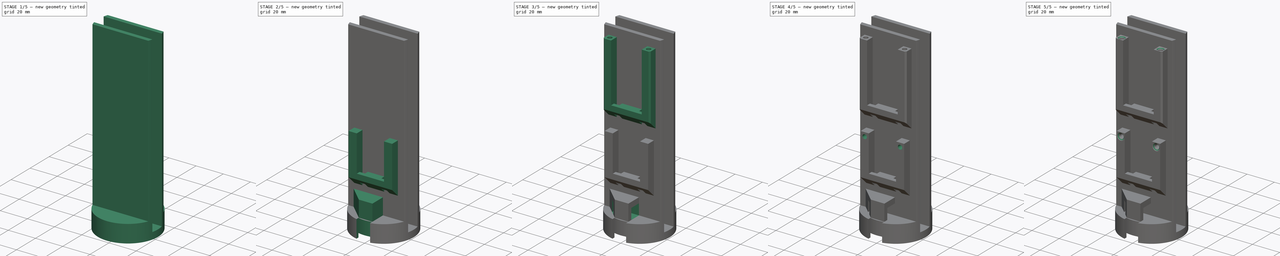
[diagram: build sequence overview — one tinted view per stage of 5, left to right]
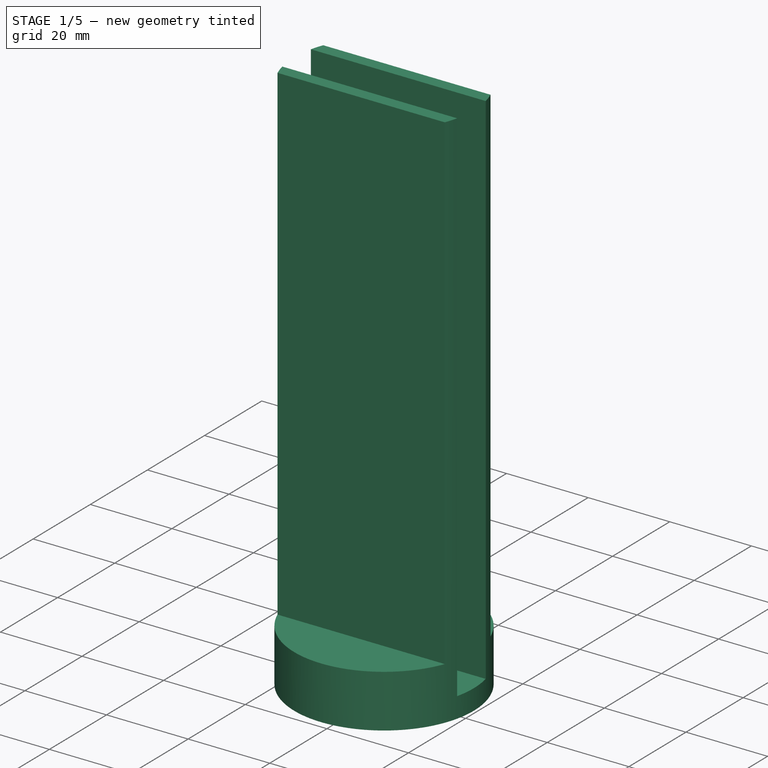
[diagram: stage 1 of 5 — iso view after this stage's code; geometry added in this stage tinted green]
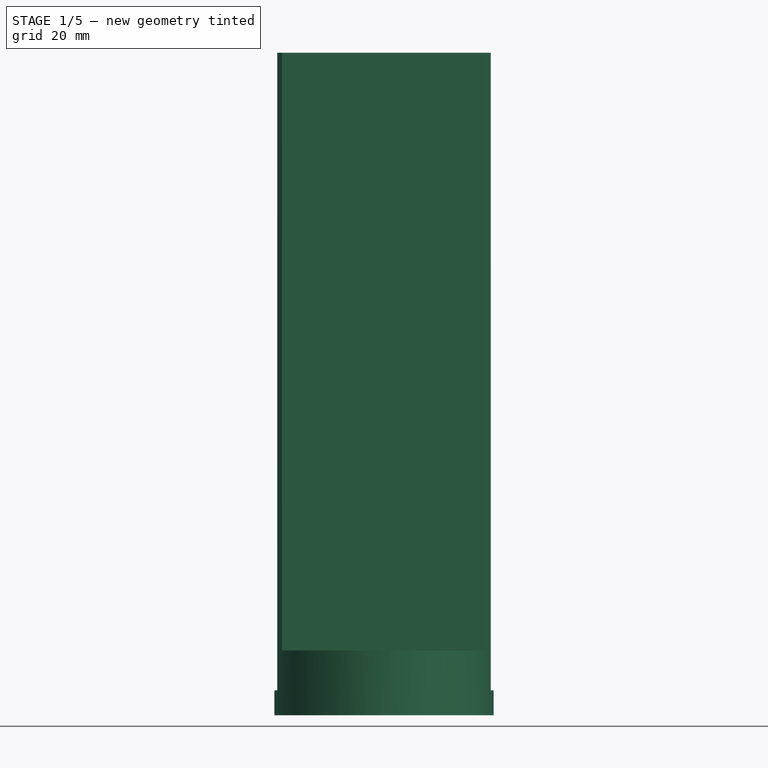
[diagram: stage 1 of 5 — front view after this stage's code; geometry added in this stage tinted green]
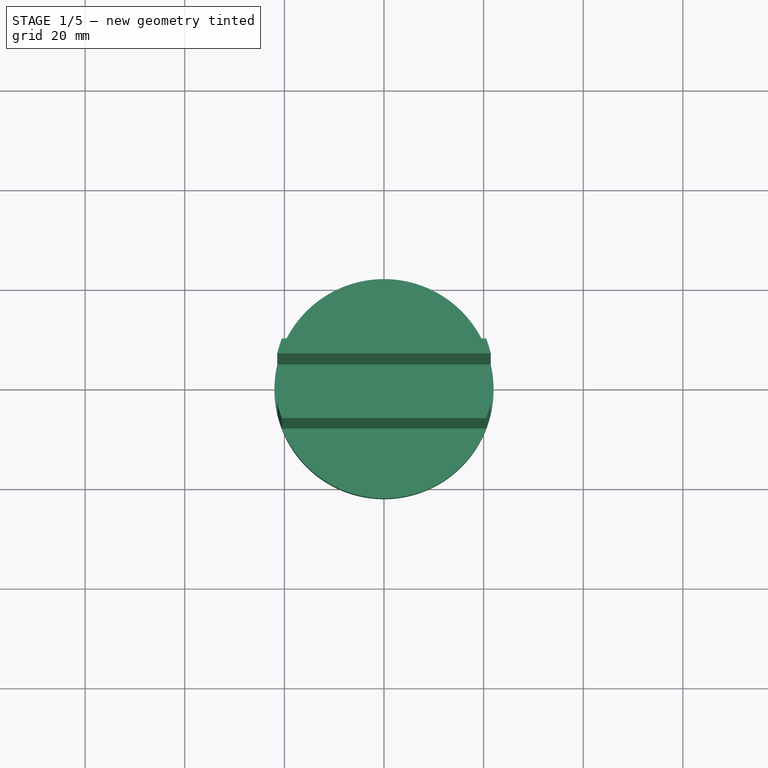
[diagram: stage 1 of 5 — top view after this stage's code; geometry added in this stage tinted green]
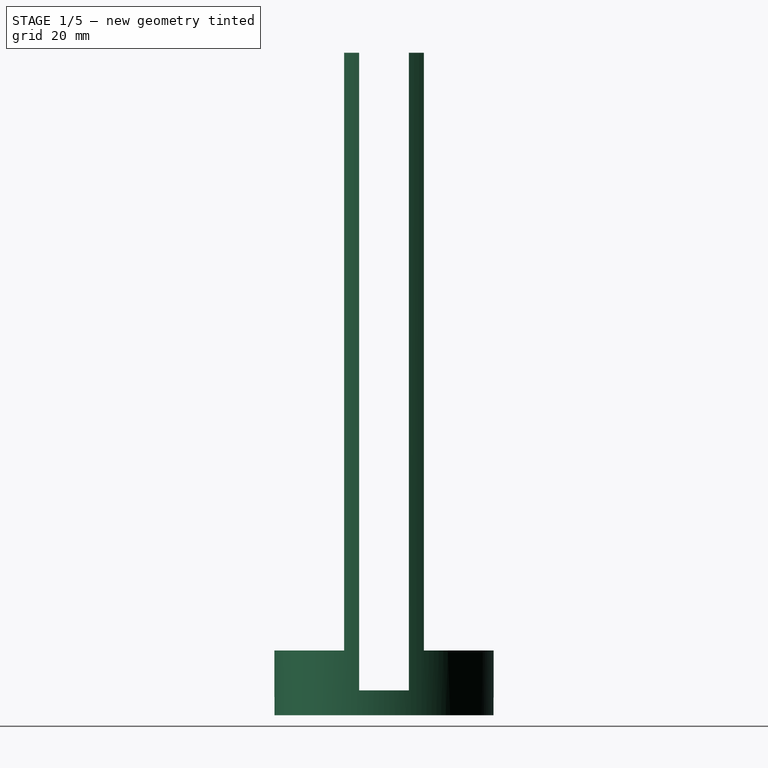
[diagram: stage 1 of 5 — right view after this stage's code; geometry added in this stage tinted green]
FCSTD DOCUMENT  (FreeCAD 0.14R3700 (Git))
Label: BuoyBatteryHolder
License: CC-BY 3.0
LicenseURL: http://creativecommons.org/licenses/by/3.0/
objects: Sketcher::SketchObject×20, PartDesign::Pocket×13, PartDesign::Chamfer×9, PartDesign::Pad×7, PartDesign::Fillet×1
note: 70 computed .brp shape members not serialized (recipe doc carries the construction recipe); baked Part::Feature solids carry a one-line shape summary decoded from their .brp

FEATURE [Sketcher::SketchObject] Sketch
  sketch-geometry (1):
    g0: Circle CenterX=0 CenterY=0 CenterZ=0 NormalX=0 NormalY=0 NormalZ=1 Radius=22
  constraints (2):
    c: Coincident(g0,g-1)
    c: Radius(g0) = 22
FEATURE [PartDesign::Pad] Pad
  Length = 133
  Length2 = 100
  Sketch = -> Sketch
  Type = 0
FEATURE [Sketcher::SketchObject] Sketch001
  ExternalGeometry = -> [Pad]
  Placement = pos=(0,0,133) rot=(0,0,1;0rad)
  Support = -> Pad [Face3]
  sketch-geometry (4):
    g0: LineSegment StartX=-21.4243 StartY=5 StartZ=0 EndX=21.4243 EndY=5 EndZ=0
    g1: LineSegment StartX=21.4243 StartY=-5 StartZ=0 EndX=-21.4243 EndY=-5 EndZ=0
    g2: ArcOfCircle CenterX=0 CenterY=0 CenterZ=0 NormalX=0 NormalY=0 NormalZ=1 Radius=22 StartAngle=2.91232 EndAngle=3.37087
    g3: ArcOfCircle CenterX=0 CenterY=0 CenterZ=0 NormalX=0 NormalY=0 NormalZ=1 Radius=22 StartAngle=6.05391 EndAngle=6.51246
  constraints (12):
    c: Horizontal(g0)
    c: Horizontal(g1)
    c: Coincident(g2,g-1)
    c: Equal(g2,g-3)
    c: Coincident(g2,g0)
    c: Coincident(g3,g0)
    c: Equal(g2,g3)
    c: Coincident(g2,g1)
    c: Coincident(g3,g1)
    c: Coincident(g2,g3)
    c: Symmetric(g0,g1,g-1)
    c: DistanceY(g0,g1) = -10
FEATURE [PartDesign::Pocket] Pocket
  Length = 128
  Sketch = -> Sketch001
  Type = 0
FEATURE [Sketcher::SketchObject] Sketch002
  ExternalGeometry = -> [Pocket]
  Placement = pos=(0,0,133) rot=(0,0,1;0rad)
  Support = -> Pocket [Face7]
  sketch-geometry (4):
    g0: ArcOfCircle CenterX=0 CenterY=0 CenterZ=0 NormalX=0 NormalY=0 NormalZ=1 Radius=22 StartAngle=3.51376 EndAngle=5.91102
    g1: LineSegment StartX=-20.4939 StartY=8 StartZ=0 EndX=20.4939 EndY=8 EndZ=0
    g2: LineSegment StartX=-20.4939 StartY=-8 StartZ=0 EndX=20.4939 EndY=-8 EndZ=0
    g3: ArcOfCircle CenterX=0 CenterY=0 CenterZ=0 NormalX=0 NormalY=0 NormalZ=1 Radius=22 StartAngle=0.372169 EndAngle=2.76942
  constraints (12):
    c: Coincident(g0,g-1)
    c: Horizontal(g1)
    c: Horizontal(g2)
    c: Coincident(g0,g2)
    c: Coincident(g3,g1)
    c: Equal(g0,g3)
    c: Coincident(g0,g2)
    c: Coincident(g3,g1)
    c: Coincident(g0,g3)
    c: Symmetric(g1,g0,g-1)
    c: Equal(g3,g-3)
    c: DistanceY(g1,g-4) = -3
FEATURE [PartDesign::Pocket] Pocket001
  Length = 120
  Sketch = -> Sketch002
  Type = 0
FEATURE [Sketcher::SketchObject] Sketch003
  Placement = pos=(0,0,0) rot=(1,0,0;3.14159rad)
  Support = -> Pocket001 [Face1]
  sketch-geometry (2):
    g0: Circle CenterX=0 CenterY=0 CenterZ=0 NormalX=0 NormalY=0 NormalZ=1 Radius=14.5
    g1: Circle CenterX=0 CenterY=0 CenterZ=0 NormalX=0 NormalY=0 NormalZ=1 Radius=20
  constraints (4):
    c: Coincident(g0,g-1)
    c: Coincident(g1,g-1)
    c: Radius(g0) = 14.5
    c: Radius(g1) = 20
FEATURE [PartDesign::Pocket] Pocket002
  Length = 3
  Sketch = -> Sketch003
  Type = 0
FEATURE [Sketcher::SketchObject] Sketch008
  ExternalGeometry = -> [Pocket002]
  Placement = pos=(0,0,0) rot=(1,0,0;3.14159rad)
  Support = -> Pocket002 [Face15]
  sketch-geometry (4):
    g0: LineSegment StartX=-5 StartY=-8 StartZ=0 EndX=5 EndY=-8 EndZ=0
    g1: LineSegment StartX=5 StartY=-8 StartZ=0 EndX=5 EndY=-20 EndZ=0
    g2: LineSegment StartX=5 StartY=-20 StartZ=0 EndX=-5 EndY=-20 EndZ=0
    g3: LineSegment StartX=-5 StartY=-20 StartZ=0 EndX=-5 EndY=-8 EndZ=0
  constraints (12):
    c: Coincident(g0,g1)
    c: Coincident(g1,g2)
    c: Coincident(g2,g3)
    c: Coincident(g3,g0)
    c: Horizontal(g0)
    c: Horizontal(g2)
    c: Vertical(g1)
    c: Vertical(g3)
    c: Tangent(g2,g-3)
    c: Distance(g1) = 12
    c: Distance(g0) = 10
    c: Symmetric(g2,g1,g-2)
FEATURE [PartDesign::Pocket] Pocket003
  Length = 8
  Sketch = -> Sketch008
  Type = 0
FEATURE [PartDesign::Chamfer] Chamfer
  Base = -> Pocket003 [Edge43]
  Size = 5
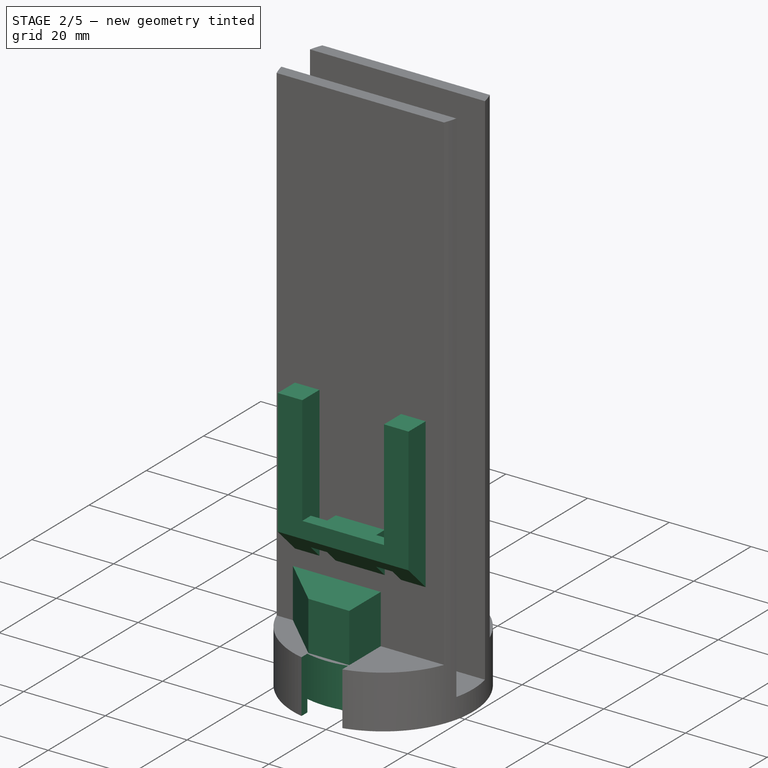
[diagram: stage 2 of 5 — iso view after this stage's code; geometry added in this stage tinted green]
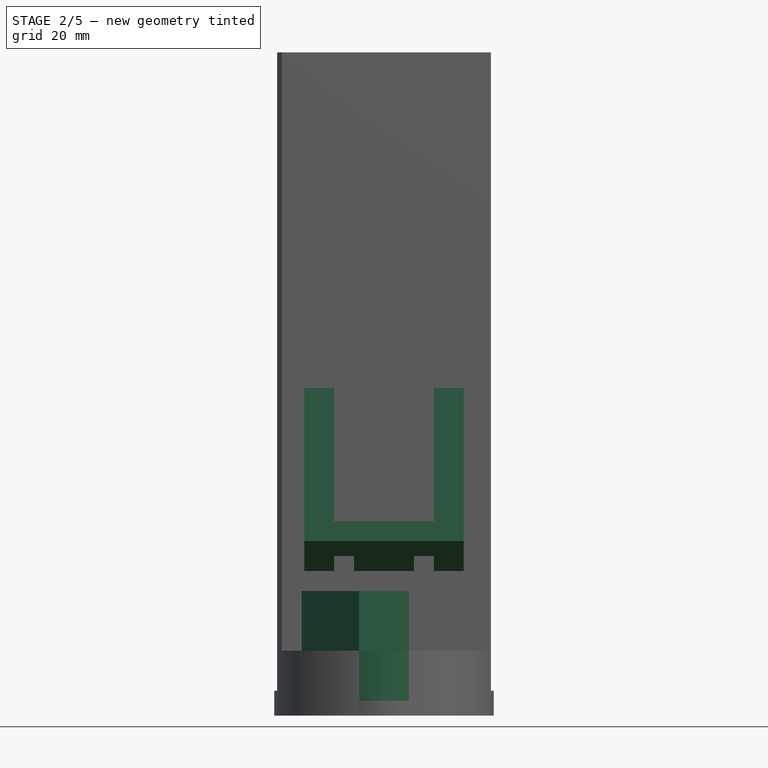
[diagram: stage 2 of 5 — front view after this stage's code; geometry added in this stage tinted green]
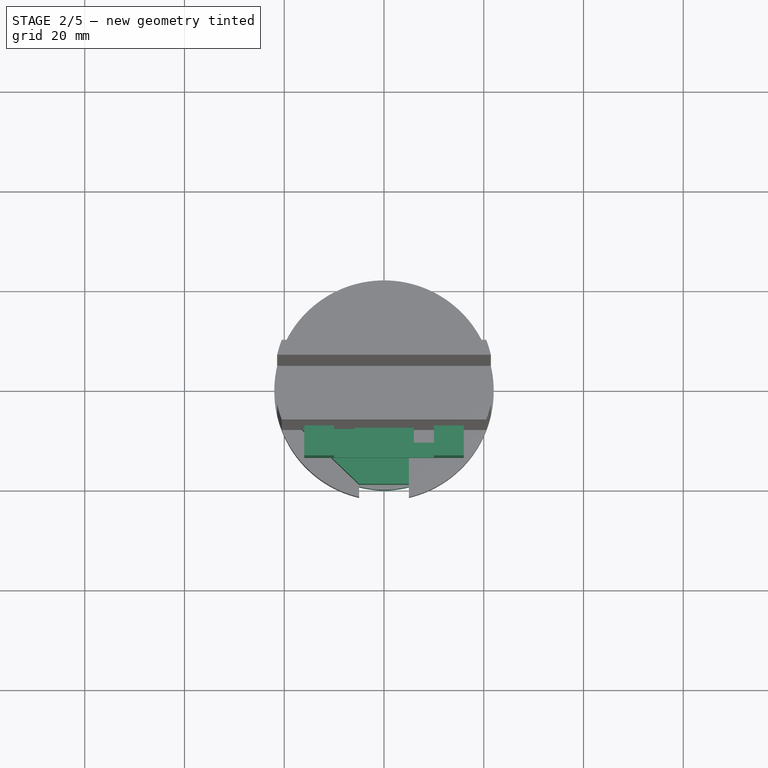
[diagram: stage 2 of 5 — top view after this stage's code; geometry added in this stage tinted green]
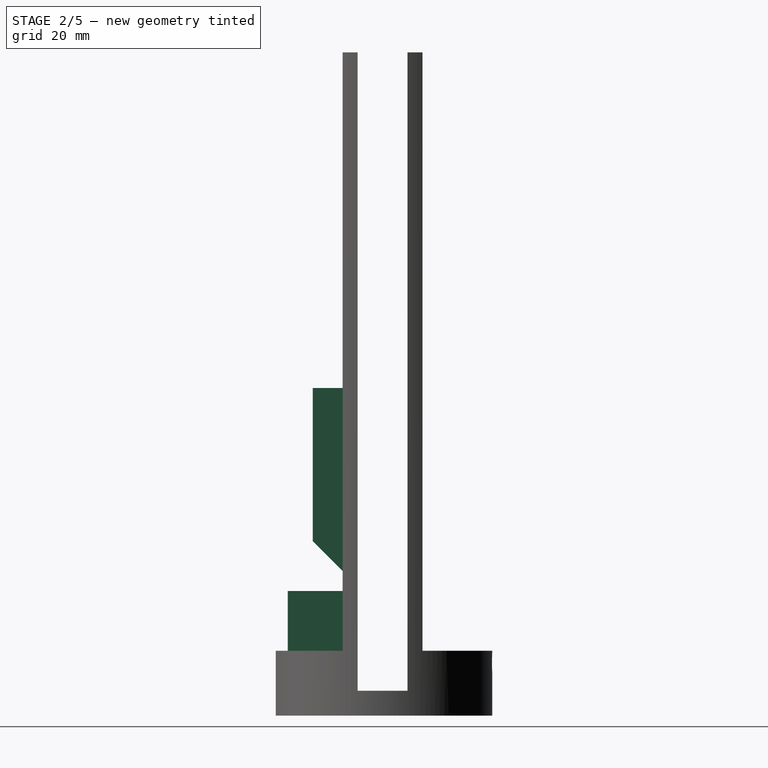
[diagram: stage 2 of 5 — right view after this stage's code; geometry added in this stage tinted green]
FEATURE [Sketcher::SketchObject] Sketch009
  ExternalGeometry = -> [Chamfer]
  Placement = pos=(0,11.5,11.5) rot=(1,0,0;2.35619rad)
  Support = -> Chamfer [Face3]
  sketch-geometry (1):
    g0: Circle CenterX=0 CenterY=-8.02082 CenterZ=0 NormalX=0 NormalY=0 NormalZ=1 Radius=1.6
  constraints (3):
    c: PointOnObject(g0,g-2)
    c: Radius(g0) = 1.6
    c: DistanceY(g0,g-3) = -4
FEATURE [PartDesign::Pocket] Pocket004
  Length = 5
  Sketch = -> Sketch009
  Type = 1
FEATURE [Sketcher::SketchObject] Sketch010
  ExternalGeometry = -> [Pocket004]
  Placement = pos=(0,0,0) rot=(1,0,0;3.14159rad)
  Support = -> Pocket004 [Face7]
  sketch-geometry (4):
    g0: ArcOfCircle CenterX=0 CenterY=0 CenterZ=0 NormalX=0 NormalY=0 NormalZ=1 Radius=22 StartAngle=1.34152 EndAngle=1.80007
    g1: ArcOfCircle CenterX=0 CenterY=0 CenterZ=0 NormalX=0 NormalY=0 NormalZ=1 Radius=20 StartAngle=1.31812 EndAngle=1.82348
    g2: LineSegment StartX=-5 StartY=21.4243 StartZ=0 EndX=-5 EndY=19.3649 EndZ=0
    g3: LineSegment StartX=5 StartY=21.4243 StartZ=0 EndX=5 EndY=19.3649 EndZ=0
  constraints (12):
    c: Coincident(g0,g-1)
    c: Coincident(g1,g-1)
    c: Coincident(g2,g0)
    c: Coincident(g2,g1)
    c: Vertical(g2)
    c: Coincident(g3,g0)
    c: Coincident(g3,g1)
    c: Vertical(g3)
    c: DistanceX(g0,g0) = 10
    c: Equal(g1,g-3)
    c: Equal(g0,g-4)
    c: Symmetric(g1,g1,g-2)
FEATURE [PartDesign::Pocket] Pocket005
  Length = 5
  Sketch = -> Sketch010
  Type = 1
FEATURE [Sketcher::SketchObject] Sketch011
  Placement = pos=(0,-8,0) rot=(1,0,0;1.5708rad)
  Support = -> Pocket005 [Face25]
  sketch-geometry (8):
    g0: LineSegment StartX=-16 StartY=65.7 StartZ=0 EndX=-10 EndY=65.7 EndZ=0
    g1: LineSegment StartX=-10 StartY=65.7 StartZ=0 EndX=-10 EndY=39 EndZ=0
    g2: LineSegment StartX=-10 StartY=39 StartZ=0 EndX=10 EndY=39 EndZ=0
    g3: LineSegment StartX=10 StartY=39 StartZ=0 EndX=10 EndY=65.7 EndZ=0
    g4: LineSegment StartX=10 StartY=65.7 StartZ=0 EndX=16 EndY=65.7 EndZ=0
    g5: LineSegment StartX=16 StartY=65.7 StartZ=0 EndX=16 EndY=35 EndZ=0
    g6: LineSegment StartX=-16 StartY=65.7 StartZ=0 EndX=-16 EndY=35 EndZ=0
    g7: LineSegment StartX=-16 StartY=35 StartZ=0 EndX=16 EndY=35 EndZ=0
  constraints (23):
    c: Horizontal(g0)
    c: Coincident(g1,g0)
    c: Vertical(g1)
    c: Coincident(g2,g1)
    c: Horizontal(g2)
    c: Coincident(g3,g2)
    c: Vertical(g3)
    c: Coincident(g4,g3)
    c: Horizontal(g4)
    c: Coincident(g5,g4)
    c: Vertical(g5)
    c: Coincident(g6,g0)
    c: Coincident(g7,g6)
    c: Coincident(g7,g5)
    c: Vertical(g6)
    c: Horizontal(g7)
    c: Symmetric(g0,g3,g-2)
    c: DistanceX(g0,g0) = 6
    c: Symmetric(g0,g4,g-2)
    c: DistanceY(g1,g6) = -4
    c: DistanceX(g0,g3) = 20
    c: DistanceY(g0,g1) = -26.7
    c: DistanceY(g5) = 35
FEATURE [PartDesign::Pad] Pad001  label="ChargerMount"
  Length = 6
  Length2 = 100
  Sketch = -> Sketch011
  Type = 0
FEATURE [PartDesign::Chamfer] Chamfer001
  Base = -> Pad001 [Edge80]
  Size = 5.999
FEATURE [Sketcher::SketchObject] Sketch012
  ExternalGeometry = -> [Chamfer001]
  Placement = pos=(0,0,39) rot=(0,0,1;0rad)
  Support = -> Chamfer001 [Face7]
  sketch-geometry (8):
    g0: LineSegment StartX=-10 StartY=-8 StartZ=0 EndX=-6 EndY=-8 EndZ=0
    g1: LineSegment StartX=-6 StartY=-8 StartZ=0 EndX=-6 EndY=-11 EndZ=0
    g2: LineSegment StartX=-6 StartY=-11 StartZ=0 EndX=-10 EndY=-11 EndZ=0
    g3: LineSegment StartX=-10 StartY=-11 StartZ=0 EndX=-10 EndY=-8 EndZ=0
    g4: LineSegment StartX=6 StartY=-8 StartZ=0 EndX=10 EndY=-8 EndZ=0
    g5: LineSegment StartX=10 StartY=-8 StartZ=0 EndX=10 EndY=-11 EndZ=0
    g6: LineSegment StartX=10 StartY=-11 StartZ=0 EndX=6 EndY=-11 EndZ=0
    g7: LineSegment StartX=6 StartY=-11 StartZ=0 EndX=6 EndY=-8 EndZ=0
  constraints (23):
    c: Coincident(g0,g1)
    c: Coincident(g1,g2)
    c: Coincident(g2,g3)
    c: Coincident(g3,g0)
    c: Horizontal(g0)
    c: Horizontal(g2)
    c: Vertical(g1)
    c: Vertical(g3)
    c: PointOnObject(g0,g-3)
    c: Coincident(g4,g5)
    c: Coincident(g5,g6)
    c: Coincident(g6,g7)
    c: Coincident(g7,g4)
    c: Horizontal(g4)
    c: Horizontal(g6)
    c: Vertical(g5)
    c: Vertical(g7)
    c: PointOnObject(g4,g-3)
    c: DistanceX(g4,g-4) = 0
    c: DistanceX(g0,g-4) = 0
    c: DistanceY(g6,g4) = 3
    c: Symmetric(g1,g6,g-2)
    c: Distance(g0,g0) = 4
FEATURE [PartDesign::Pocket] Pocket006
  Length = 10
  Sketch = -> Sketch012
  Type = 0
FEATURE [Sketcher::SketchObject] Sketch013
  Placement = pos=(0,0,13) rot=(0,0,1;0rad)
  Support = -> Pocket006 [Face24]
  sketch-geometry (5):
    g0: LineSegment StartX=-5 StartY=-8 StartZ=0 EndX=5 EndY=-8 EndZ=0
    g1: LineSegment StartX=5 StartY=-8 StartZ=0 EndX=5 EndY=-19 EndZ=0
    g2: LineSegment StartX=5 StartY=-19 StartZ=0 EndX=-5 EndY=-19 EndZ=0
    g3: LineSegment StartX=-5 StartY=-19 StartZ=0 EndX=-16.4939 EndY=-8 EndZ=0
    g4: LineSegment StartX=-16.4939 StartY=-8 StartZ=0 EndX=-5 EndY=-8 EndZ=0
  constraints (11):
    c: Coincident(g0,g1)
    c: Coincident(g1,g2)
    c: Horizontal(g0)
    c: Horizontal(g2)
    c: Vertical(g1)
    c: DistanceY(g0,g1) = -11
    c: Symmetric(g0,g0,g-2)
    c: DistanceX(g0,g0) = -10
    c: Coincident(g3,g2)
    c: Coincident(g4,g3)
    c: Coincident(g4,g0)
FEATURE [PartDesign::Pad] Pad002
  Length = 12
  Length2 = 100
  Sketch = -> Sketch013
  Type = 0
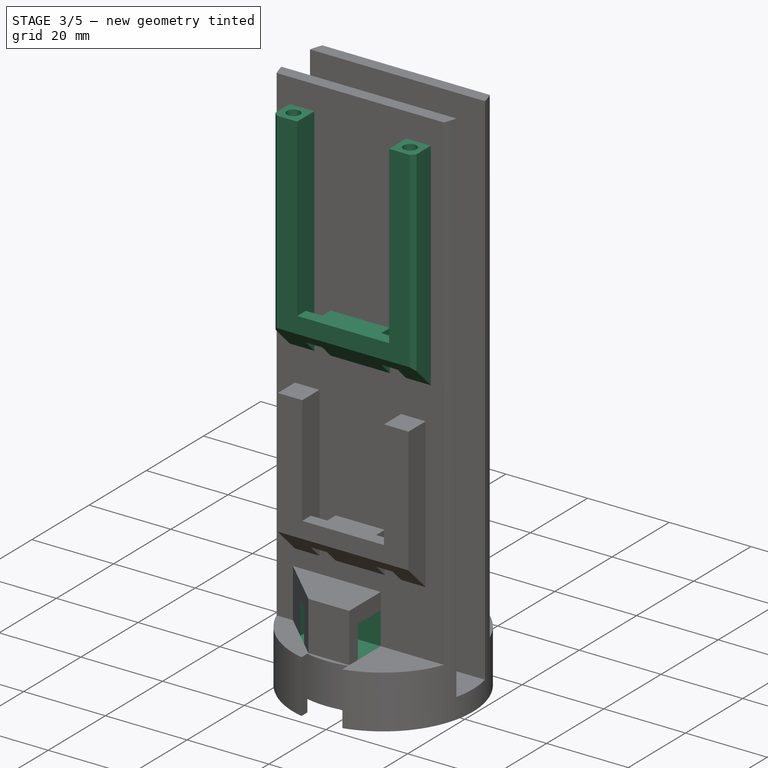
[diagram: stage 3 of 5 — iso view after this stage's code; geometry added in this stage tinted green]
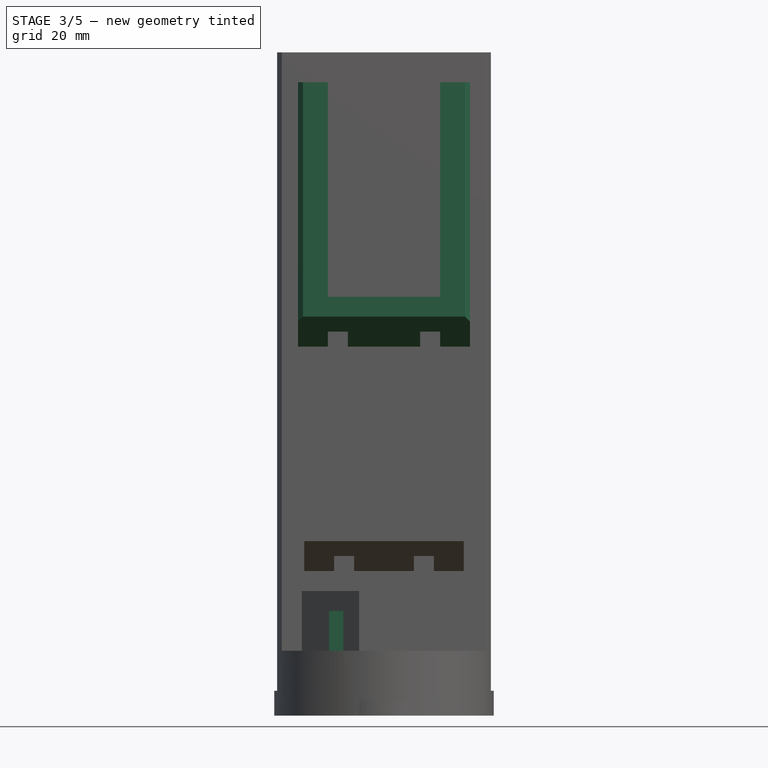
[diagram: stage 3 of 5 — front view after this stage's code; geometry added in this stage tinted green]
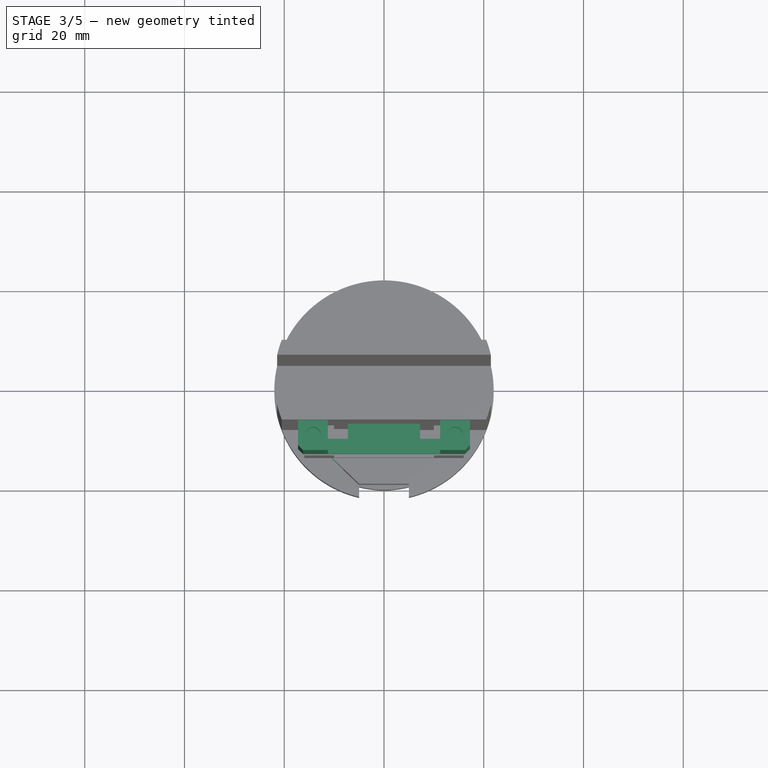
[diagram: stage 3 of 5 — top view after this stage's code; geometry added in this stage tinted green]
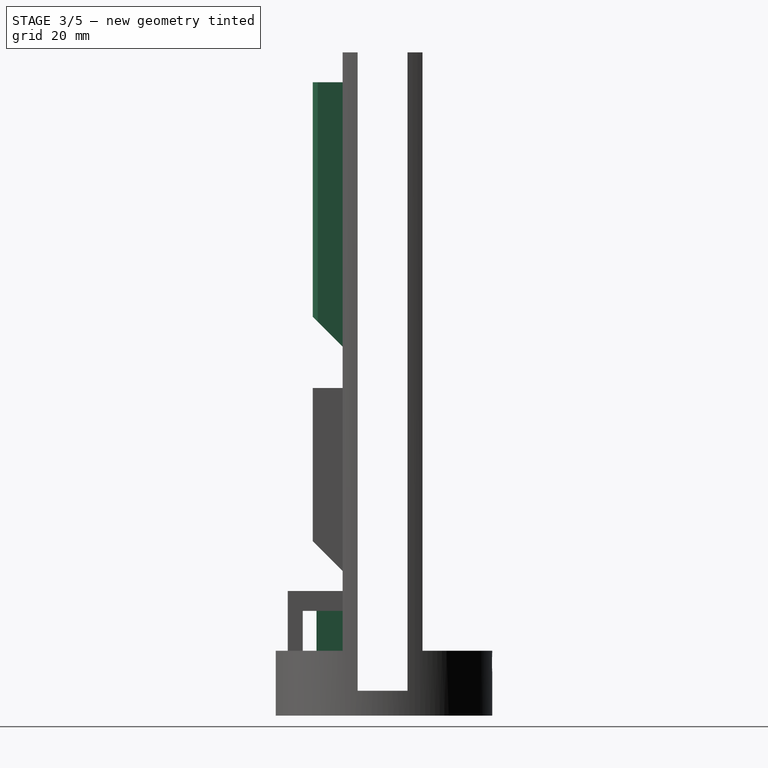
[diagram: stage 3 of 5 — right view after this stage's code; geometry added in this stage tinted green]
FEATURE [Sketcher::SketchObject] Sketch014
  ExternalGeometry = -> [Pad002]
  Placement = pos=(5,0,0) rot=(0.57735,0.57735,0.57735;2.0944rad)
  Support = -> Pad002 [Face25]
  sketch-geometry (4):
    g0: LineSegment StartX=-8 StartY=13 StartZ=0 EndX=-16 EndY=13 EndZ=0
    g1: LineSegment StartX=-16 StartY=13 StartZ=0 EndX=-16 EndY=21 EndZ=0
    g2: LineSegment StartX=-16 StartY=21 StartZ=0 EndX=-8 EndY=21 EndZ=0
    g3: LineSegment StartX=-8 StartY=21 StartZ=0 EndX=-8 EndY=13 EndZ=0
  constraints (11):
    c: Coincident(g0,g1)
    c: Coincident(g1,g2)
    c: Coincident(g2,g3)
    c: Coincident(g3,g0)
    c: Horizontal(g0)
    c: Horizontal(g2)
    c: Vertical(g1)
    c: Vertical(g3)
    c: Coincident(g0,g-3)
    c: DistanceX(g2,g1) = -8
    c: DistanceY(g2,g0) = -8
FEATURE [PartDesign::Pocket] Pocket007
  Length = 16
  Sketch = -> Sketch014
  Type = 0
FEATURE [Sketcher::SketchObject] Sketch015
  ExternalGeometry = -> [Pocket007]
  Placement = pos=(0,-8,0) rot=(1,0,0;1.5708rad)
  Support = -> Pocket007 [Face5]
  sketch-geometry (8):
    g0: LineSegment StartX=17.25 StartY=127 StartZ=0 EndX=17.25 EndY=80 EndZ=0
    g1: LineSegment StartX=17.25 StartY=80 StartZ=0 EndX=-17.25 EndY=80 EndZ=0
    g2: LineSegment StartX=-17.25 StartY=80 StartZ=0 EndX=-17.25 EndY=127 EndZ=0
    g3: LineSegment StartX=11.25 StartY=127 StartZ=0 EndX=11.25 EndY=84 EndZ=0
    g4: LineSegment StartX=11.25 StartY=84 StartZ=0 EndX=-11.25 EndY=84 EndZ=0
    g5: LineSegment StartX=-11.25 StartY=84 StartZ=0 EndX=-11.25 EndY=127 EndZ=0
    g6: LineSegment StartX=-17.25 StartY=127 StartZ=0 EndX=-11.25 EndY=127 EndZ=0
    g7: LineSegment StartX=11.25 StartY=127 StartZ=0 EndX=17.25 EndY=127 EndZ=0
  constraints (23):
    c: Coincident(g0,g1)
    c: Coincident(g1,g2)
    c: Horizontal(g1)
    c: Vertical(g0)
    c: Vertical(g2)
    c: Coincident(g3,g4)
    c: Coincident(g4,g5)
    c: Horizontal(g4)
    c: Vertical(g3)
    c: Vertical(g5)
    c: Coincident(g6,g2)
    c: Coincident(g6,g5)
    c: Horizontal(g6)
    c: Coincident(g7,g3)
    c: Coincident(g7,g0)
    c: Horizontal(g7)
    c: Symmetric(g5,g3,g-2)
    c: Symmetric(g2,g0,g-2)
    c: DistanceX(g5,g2) = -6
    c: DistanceY(g2,g4) = -43
    c: DistanceY(g1,g4) = 4
    c: DistanceX(g3,g4) = -22.5
    c: DistanceY(g2,g-3) = 6
FEATURE [PartDesign::Pad] Pad003
  Length = 6
  Length2 = 100
  Sketch = -> Sketch015
  Type = 0
FEATURE [PartDesign::Chamfer] Chamfer002
  Base = -> Pad003 [Edge56]
  Size = 5.999
FEATURE [PartDesign::Chamfer] Chamfer003
  Base = -> Chamfer002 [Edge50,Edge43]
  Size = 1
FEATURE [Sketcher::SketchObject] Sketch016
  ExternalGeometry = -> [Chamfer003]
  Placement = pos=(0,0,84) rot=(0,0,1;0rad)
  Support = -> Chamfer003 [Face11]
  sketch-geometry (8):
    g0: LineSegment StartX=-11.25 StartY=-8 StartZ=0 EndX=-7.25 EndY=-8 EndZ=0
    g1: LineSegment StartX=-7.25 StartY=-8 StartZ=0 EndX=-7.25 EndY=-11 EndZ=0
    g2: LineSegment StartX=-7.25 StartY=-11 StartZ=0 EndX=-11.25 EndY=-11 EndZ=0
    g3: LineSegment StartX=-11.25 StartY=-11 StartZ=0 EndX=-11.25 EndY=-8 EndZ=0
    g4: LineSegment StartX=11.25 StartY=-8 StartZ=0 EndX=7.25 EndY=-8 EndZ=0
    g5: LineSegment StartX=7.25 StartY=-8 StartZ=0 EndX=7.25 EndY=-11 EndZ=0
    g6: LineSegment StartX=7.25 StartY=-11 StartZ=0 EndX=11.25 EndY=-11 EndZ=0
    g7: LineSegment StartX=11.25 StartY=-11 StartZ=0 EndX=11.25 EndY=-8 EndZ=0
  constraints (22):
    c: Coincident(g0,g1)
    c: Coincident(g1,g2)
    c: Coincident(g2,g3)
    c: Coincident(g3,g0)
    c: Horizontal(g0)
    c: Horizontal(g2)
    c: Vertical(g1)
    c: Vertical(g3)
    c: Coincident(g0,g-3)
    c: Coincident(g4,g5)
    c: Coincident(g5,g6)
    c: Coincident(g6,g7)
    c: Coincident(g7,g4)
    c: Horizontal(g4)
    c: Horizontal(g6)
    c: Vertical(g5)
    c: Vertical(g7)
    c: PointOnObject(g4,g-4)
    c: Symmetric(g4,g0,g-2)
    c: Symmetric(g5,g1,g-2)
    c: DistanceX(g1,g2) = -4
    c: Distance(g1) = 3
FEATURE [PartDesign::Pocket] Pocket008
  Length = 10
  Sketch = -> Sketch016
  Type = 0
FEATURE [Sketcher::SketchObject] Sketch017
  ExternalGeometry = -> [Pocket008]
  Placement = pos=(0,0,127) rot=(0,0,1;0rad)
  Support = -> Pocket008 [Face21]
  sketch-geometry (2):
    g0: Circle CenterX=-14.25 CenterY=-11 CenterZ=0 NormalX=0 NormalY=0 NormalZ=1 Radius=1.6
    g1: Circle CenterX=14.25 CenterY=-11 CenterZ=0 NormalX=0 NormalY=0 NormalZ=1 Radius=1.6
  constraints (5):
    c: Equal(g1,g0)
    c: Symmetric(g0,g1,g-2)
    c: DistanceX(g0,g-3) = 3
    c: DistanceY(g0,g-3) = -3
    c: Radius(g0) = 1.6
FEATURE [PartDesign::Pocket] Pocket009
  Length = 5
  Sketch = -> Sketch017
  Type = 0
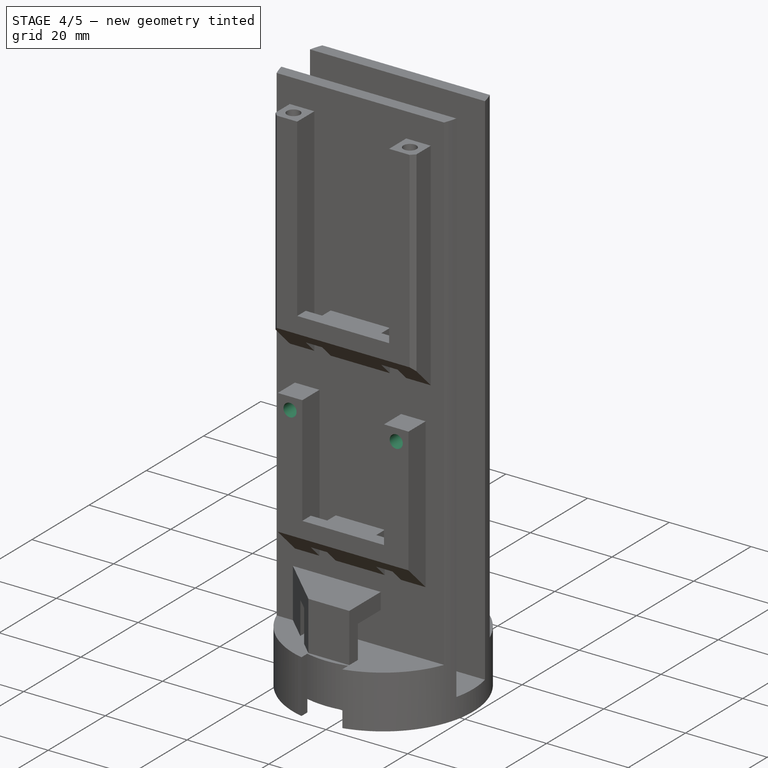
[diagram: stage 4 of 5 — iso view after this stage's code; geometry added in this stage tinted green]
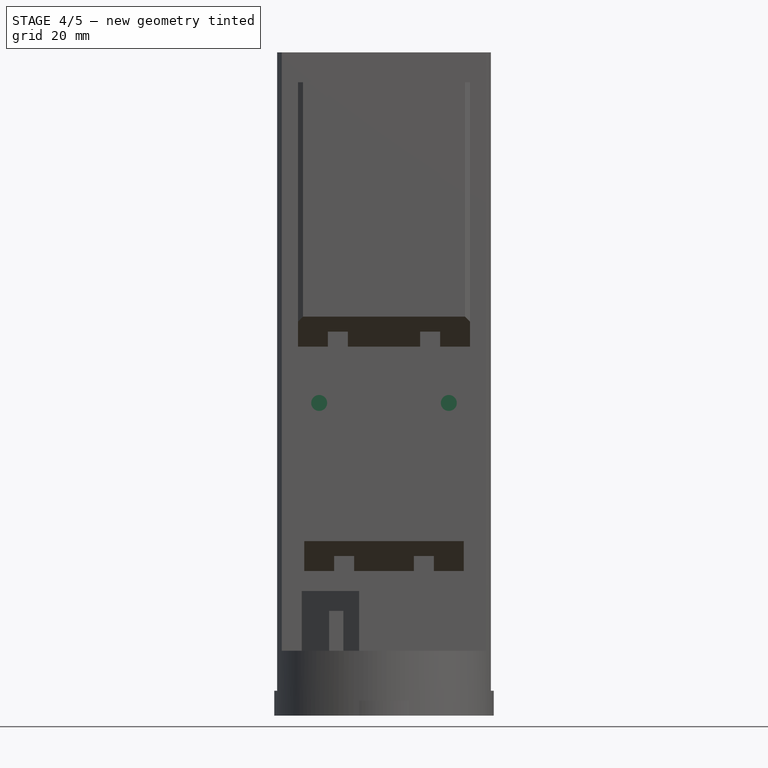
[diagram: stage 4 of 5 — front view after this stage's code; geometry added in this stage tinted green]
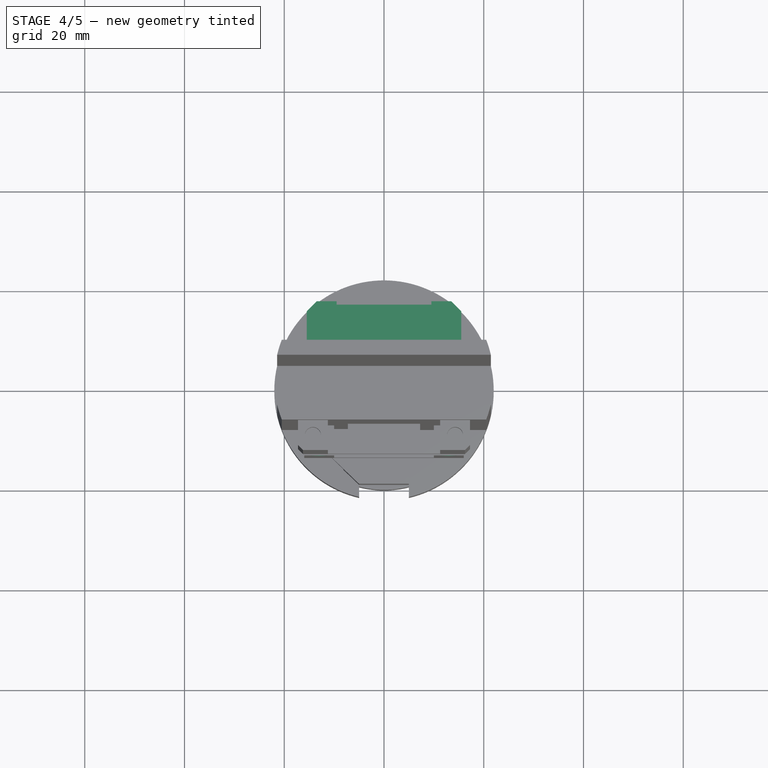
[diagram: stage 4 of 5 — top view after this stage's code; geometry added in this stage tinted green]
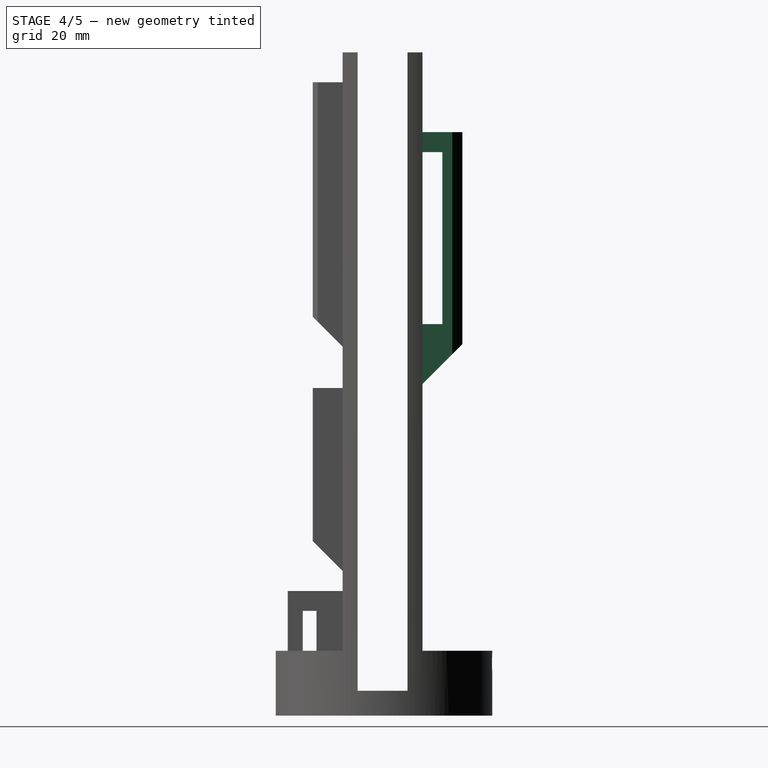
[diagram: stage 4 of 5 — right view after this stage's code; geometry added in this stage tinted green]
FEATURE [Sketcher::SketchObject] Sketch018
  ExternalGeometry = -> [Pocket009]
  Placement = pos=(0,-14,0) rot=(1,0,0;1.5708rad)
  Support = -> Pocket009 [Face47]
  sketch-geometry (2):
    g0: Circle CenterX=-13 CenterY=62.7 CenterZ=0 NormalX=0 NormalY=0 NormalZ=1 Radius=1.6
    g1: Circle CenterX=13 CenterY=62.7 CenterZ=0 NormalX=0 NormalY=0 NormalZ=1 Radius=1.6
  constraints (5):
    c: Symmetric(g0,g1,g-2)
    c: Equal(g0,g1)
    c: Radius(g0) = 1.6
    c: DistanceX(g0,g-3) = -3
    c: DistanceY(g0,g-3) = 3
FEATURE [PartDesign::Pocket] Pocket010
  Length = 5
  Sketch = -> Sketch018
  Type = 0
FEATURE [Sketcher::SketchObject] Sketch019
  ExternalGeometry = -> [Pocket010]
  Placement = pos=(0,8,0) rot=(0,0.707107,0.707107;3.14159rad)
  Support = -> Pocket010 [Face60]
  sketch-geometry (8):
    g0: LineSegment StartX=15.5 StartY=113 StartZ=0 EndX=15.5 EndY=74.5 EndZ=0
    g1: LineSegment StartX=15.5 StartY=74.5 StartZ=0 EndX=-15.5 EndY=74.5 EndZ=0
    g2: LineSegment StartX=-15.5 StartY=74.5 StartZ=0 EndX=-15.5 EndY=113 EndZ=0
    g3: LineSegment StartX=9.5 StartY=113 StartZ=0 EndX=9.5 EndY=78.5 EndZ=0
    g4: LineSegment StartX=9.5 StartY=78.5 StartZ=0 EndX=-9.5 EndY=78.5 EndZ=0
    g5: LineSegment StartX=-9.5 StartY=78.5 StartZ=0 EndX=-9.5 EndY=113 EndZ=0
    g6: LineSegment StartX=-9.5 StartY=113 StartZ=0 EndX=-15.5 EndY=113 EndZ=0
    g7: LineSegment StartX=15.5 StartY=113 StartZ=0 EndX=9.5 EndY=113 EndZ=0
  constraints (23):
    c: Coincident(g0,g1)
    c: Coincident(g1,g2)
    c: Horizontal(g1)
    c: Vertical(g0)
    c: Vertical(g2)
    c: Coincident(g3,g4)
    c: Coincident(g4,g5)
    c: Horizontal(g4)
    c: Vertical(g3)
    c: Vertical(g5)
    c: Coincident(g6,g5)
    c: Coincident(g6,g2)
    c: Coincident(g7,g0)
    c: Coincident(g7,g3)
    c: Horizontal(g6)
    c: Horizontal(g7)
    c: Symmetric(g5,g3,g-2)
    c: Symmetric(g2,g0,g-2)
    c: DistanceY(g4,g1) = -4
    c: DistanceX(g5,g2) = -6
    c: DistanceX(g4,g3) = 19
    c: DistanceY(g3,g3) = 34.5
    c: DistanceY(g-3,g2) = -20
FEATURE [PartDesign::Pad] Pad004
  Length = 8
  Length2 = 100
  Sketch = -> Sketch019
  Type = 0
FEATURE [Sketcher::SketchObject] Sketch020
  ExternalGeometry = -> [Pad004]
  Placement = pos=(0,0,113) rot=(0,0,1;0rad)
  Support = -> Pad004 [Face84]
  sketch-geometry (4):
    g0: LineSegment StartX=15.5 StartY=8 StartZ=0 EndX=-15.5 EndY=8 EndZ=0
    g1: LineSegment StartX=-15.5 StartY=8 StartZ=0 EndX=-15.5 EndY=12 EndZ=0
    g2: LineSegment StartX=-15.5 StartY=12 StartZ=0 EndX=15.5 EndY=12 EndZ=0
    g3: LineSegment StartX=15.5 StartY=12 StartZ=0 EndX=15.5 EndY=8 EndZ=0
  constraints (11):
    c: Coincident(g0,g1)
    c: Coincident(g1,g2)
    c: Coincident(g2,g3)
    c: Coincident(g3,g0)
    c: Horizontal(g0)
    c: Horizontal(g2)
    c: Vertical(g1)
    c: Vertical(g3)
    c: Coincident(g0,g-4)
    c: Symmetric(g2,g1,g-2)
    c: DistanceY(g2,g0) = -4
FEATURE [PartDesign::Pocket] Pocket011
  Length = 34.5
  Sketch = -> Sketch020
  Type = 0
FEATURE [Sketcher::SketchObject] Sketch021
  Placement = pos=(0,0,113) rot=(0,0,1;0rad)
  Support = -> Pocket011 [Face102]
  sketch-geometry (8):
    g0: LineSegment StartX=15.5 StartY=16 StartZ=0 EndX=9.5 EndY=16 EndZ=0
    g1: LineSegment StartX=9.5 StartY=16 StartZ=0 EndX=9.5 EndY=8 EndZ=0
    g2: LineSegment StartX=9.5 StartY=8 StartZ=0 EndX=15.5 EndY=8 EndZ=0
    g3: LineSegment StartX=15.5 StartY=8 StartZ=0 EndX=15.5 EndY=16 EndZ=0
    g4: LineSegment StartX=-9.5 StartY=8 StartZ=0 EndX=-15.5 EndY=8 EndZ=0
    g5: LineSegment StartX=-15.5 StartY=8 StartZ=0 EndX=-15.5 EndY=16 EndZ=0
    g6: LineSegment StartX=-15.5 StartY=16 StartZ=0 EndX=-9.5 EndY=16 EndZ=0
    g7: LineSegment StartX=-9.5 StartY=16 StartZ=0 EndX=-9.5 EndY=8 EndZ=0
  constraints (18):
    c: Coincident(g0,g1)
    c: Coincident(g1,g2)
    c: Coincident(g2,g3)
    c: Coincident(g3,g0)
    c: Horizontal(g2)
    c: Vertical(g1)
    c: Vertical(g3)
    c: Coincident(g4,g5)
    c: Coincident(g5,g6)
    c: Coincident(g6,g7)
    c: Coincident(g7,g4)
    c: Horizontal(g4)
    c: Horizontal(g6)
    c: Vertical(g5)
    c: Vertical(g7)
    c: Symmetric(g5,g0,g-2)
    c: Symmetric(g0,g6,g-2)
    c: Symmetric(g4,g1,g-2)
FEATURE [PartDesign::Pad] Pad005
  Length = 4
  Length2 = 100
  Sketch = -> Sketch021
  Type = 0
FEATURE [PartDesign::Chamfer] Chamfer004
  Base = -> Pad005 [Edge211]
  Size = 7.9999
FEATURE [PartDesign::Chamfer] Chamfer005
  Base = -> Chamfer004 [Edge31,Edge21,Edge48,Edge37]
  Size = 2
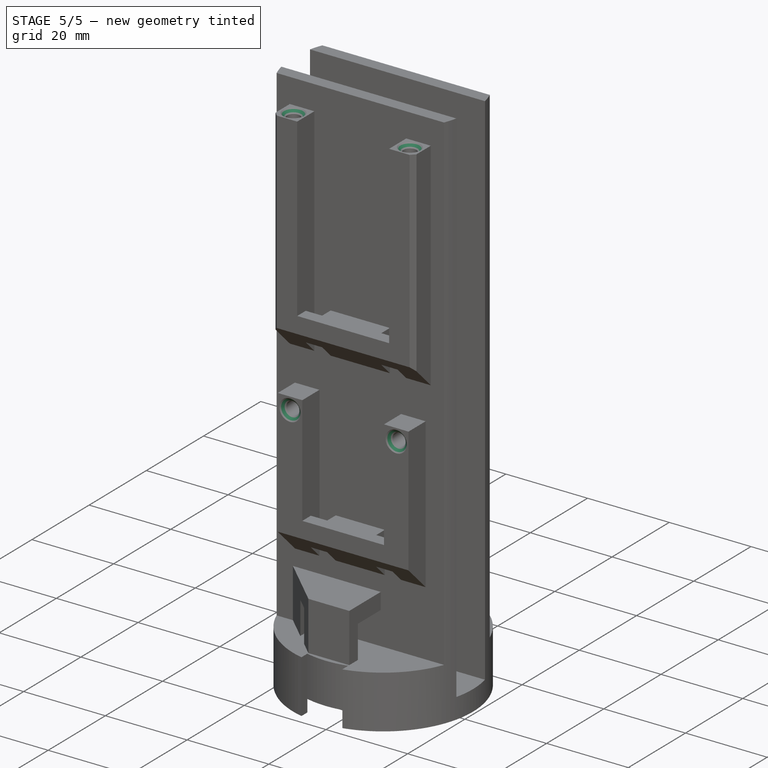
[diagram: stage 5 of 5 — iso view after this stage's code; geometry added in this stage tinted green]
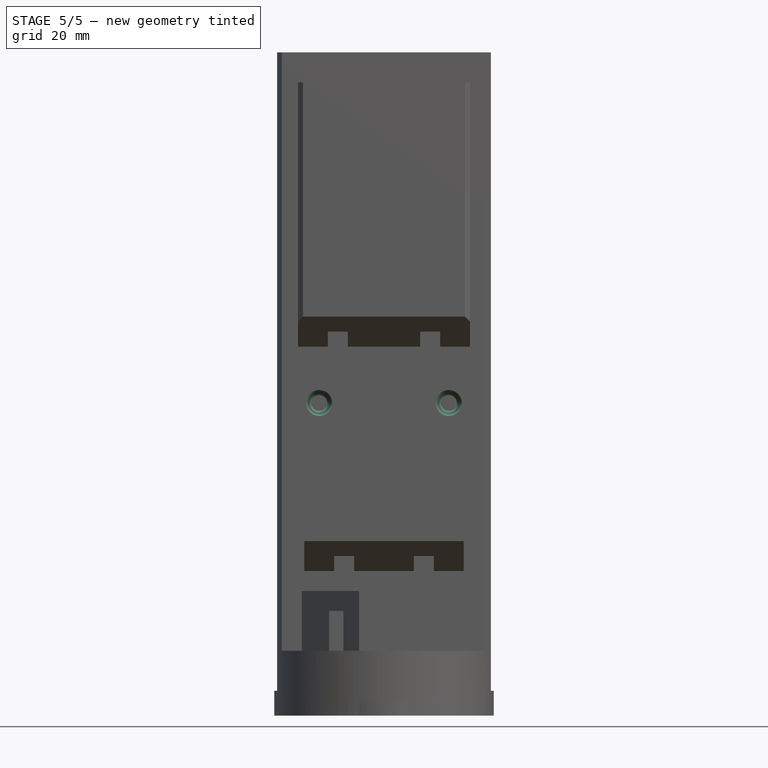
[diagram: stage 5 of 5 — front view after this stage's code; geometry added in this stage tinted green]
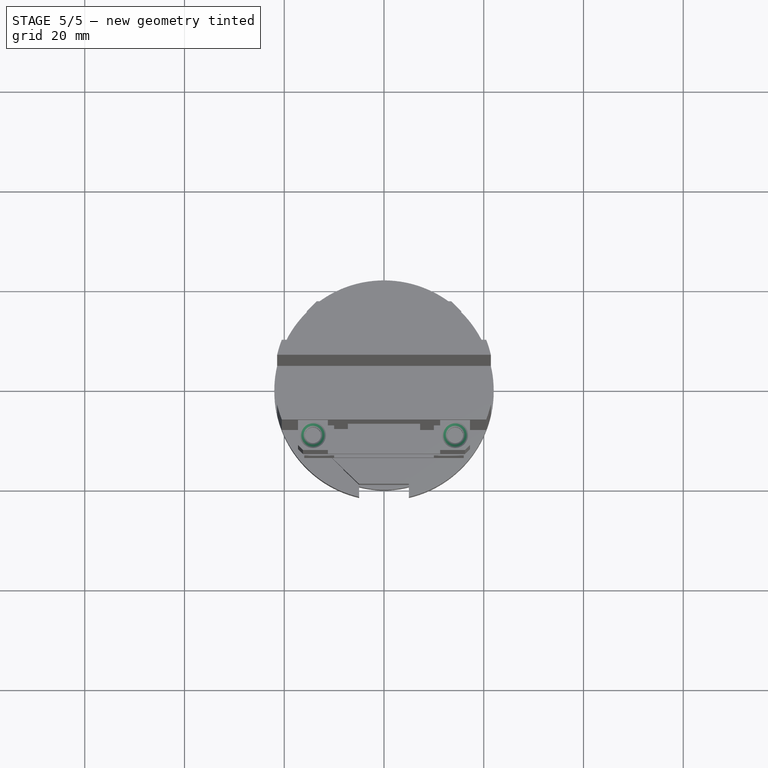
[diagram: stage 5 of 5 — top view after this stage's code; geometry added in this stage tinted green]
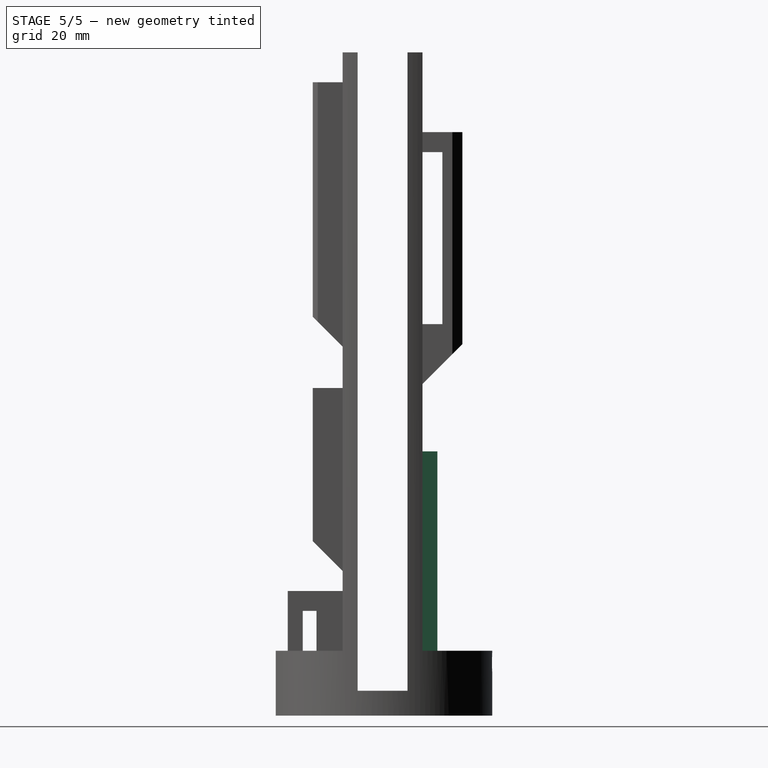
[diagram: stage 5 of 5 — right view after this stage's code; geometry added in this stage tinted green]
FEATURE [Sketcher::SketchObject] Sketch022
  ExternalGeometry = -> [Chamfer005]
  Placement = pos=(0,8,0) rot=(0,0.707107,0.707107;3.14159rad)
  Support = -> Chamfer005 [Face4]
  sketch-geometry (4):
    g0: LineSegment StartX=-15 StartY=53 StartZ=0 EndX=15 EndY=53 EndZ=0
    g1: LineSegment StartX=15 StartY=53 StartZ=0 EndX=15 EndY=13 EndZ=0
    g2: LineSegment StartX=15 StartY=13 StartZ=0 EndX=-15 EndY=13 EndZ=0
    g3: LineSegment StartX=-15 StartY=13 StartZ=0 EndX=-15 EndY=53 EndZ=0
  constraints (12):
    c: Coincident(g0,g1)
    c: Coincident(g1,g2)
    c: Coincident(g2,g3)
    c: Coincident(g3,g0)
    c: Horizontal(g0)
    c: Horizontal(g2)
    c: Vertical(g1)
    c: Vertical(g3)
    c: Symmetric(g0,g0,g-2)
    c: DistanceX(g0,g0) = 30
    c: PointOnObject(g-3,g2)
    c: DistanceY(g0,g1) = -40
FEATURE [PartDesign::Pad] Pad006
  Length = 3
  Length2 = 100
  Sketch = -> Sketch022
  Type = 0
FEATURE [Sketcher::SketchObject] Sketch023
  ExternalGeometry = -> [Pad006]
  Placement = pos=(0,11,0) rot=(0,0.707107,0.707107;3.14159rad)
  Support = -> Pad006 [Face48]
  sketch-geometry (2):
    g0: Circle CenterX=0 CenterY=43 CenterZ=0 NormalX=0 NormalY=0 NormalZ=1 Radius=1.6
    g1: Circle CenterX=0 CenterY=23 CenterZ=0 NormalX=0 NormalY=0 NormalZ=1 Radius=1.6
  constraints (6):
    c: Equal(g0,g1)
    c: Radius(g0) = 1.6
    c: PointOnObject(g0,g-2)
    c: PointOnObject(g1,g-2)
    c: DistanceY(g-3,g0) = -10
    c: DistanceY(g1,g0) = 20
FEATURE [PartDesign::Pocket] Pocket012
  Length = 4
  Sketch = -> Sketch023
  Type = 0
FEATURE [PartDesign::Chamfer] Chamfer006
  Base = -> Pocket012 [Edge338,Edge339]
  Size = 1
FEATURE [PartDesign::Chamfer] Chamfer007
  Base = -> Chamfer006 [Edge103,Edge125]
  Size = 1
FEATURE [PartDesign::Fillet] Fillet
  Base = -> Chamfer007 [Edge234]
  Radius = 1
FEATURE [PartDesign::Chamfer] Chamfer008
  Base = -> Fillet [Edge287,Edge288]
  Size = 1
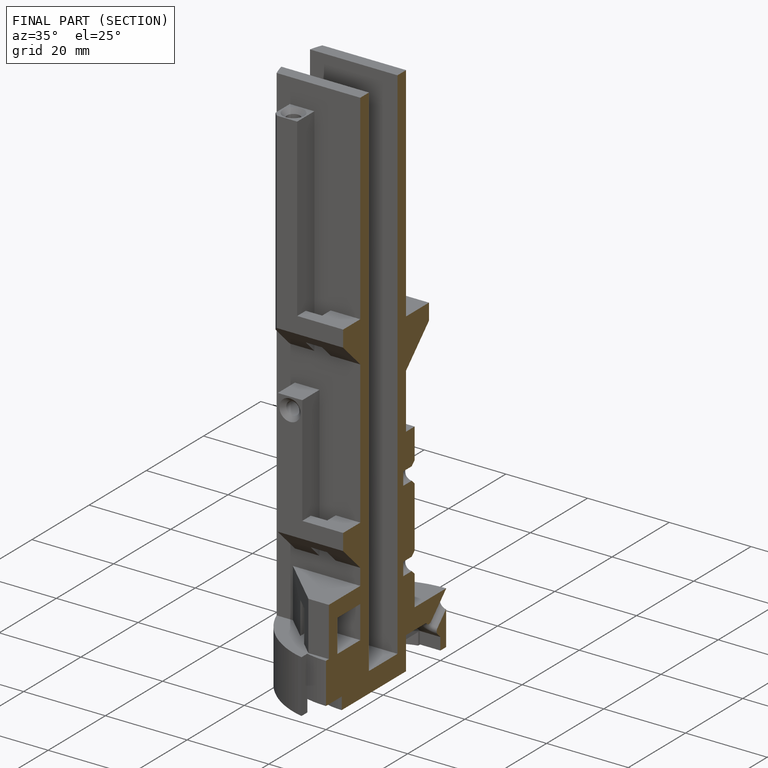
[diagram: finished part — half-section view (interior)]
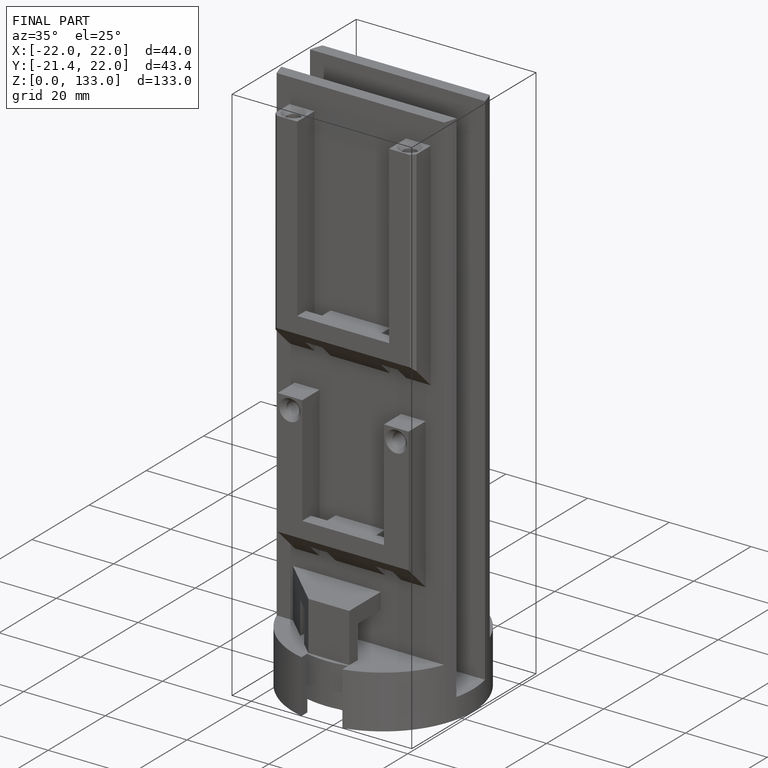
[diagram: finished part — iso view with bounding-box wireframe]
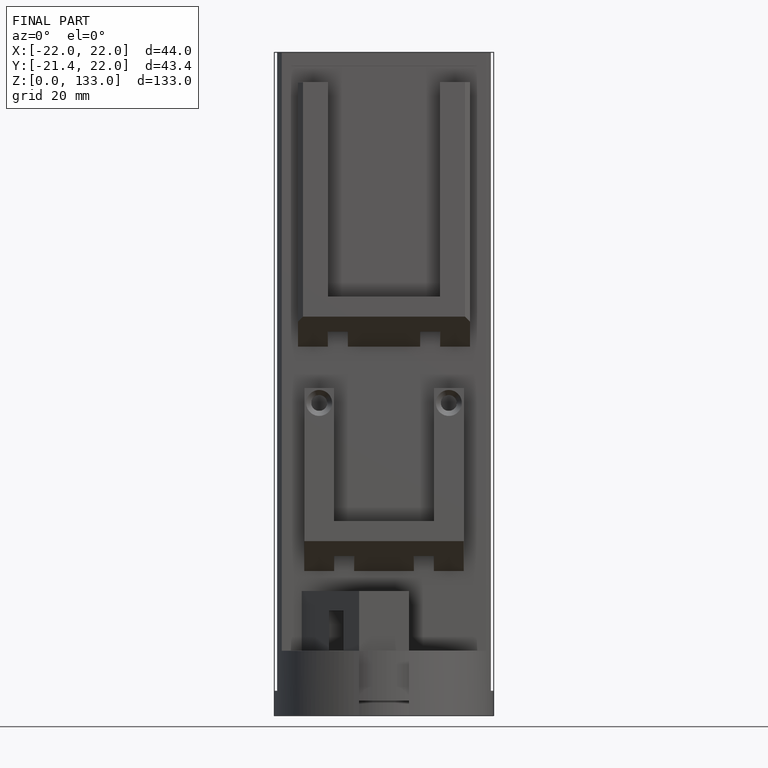
[diagram: finished part — front view with bounding-box wireframe]
